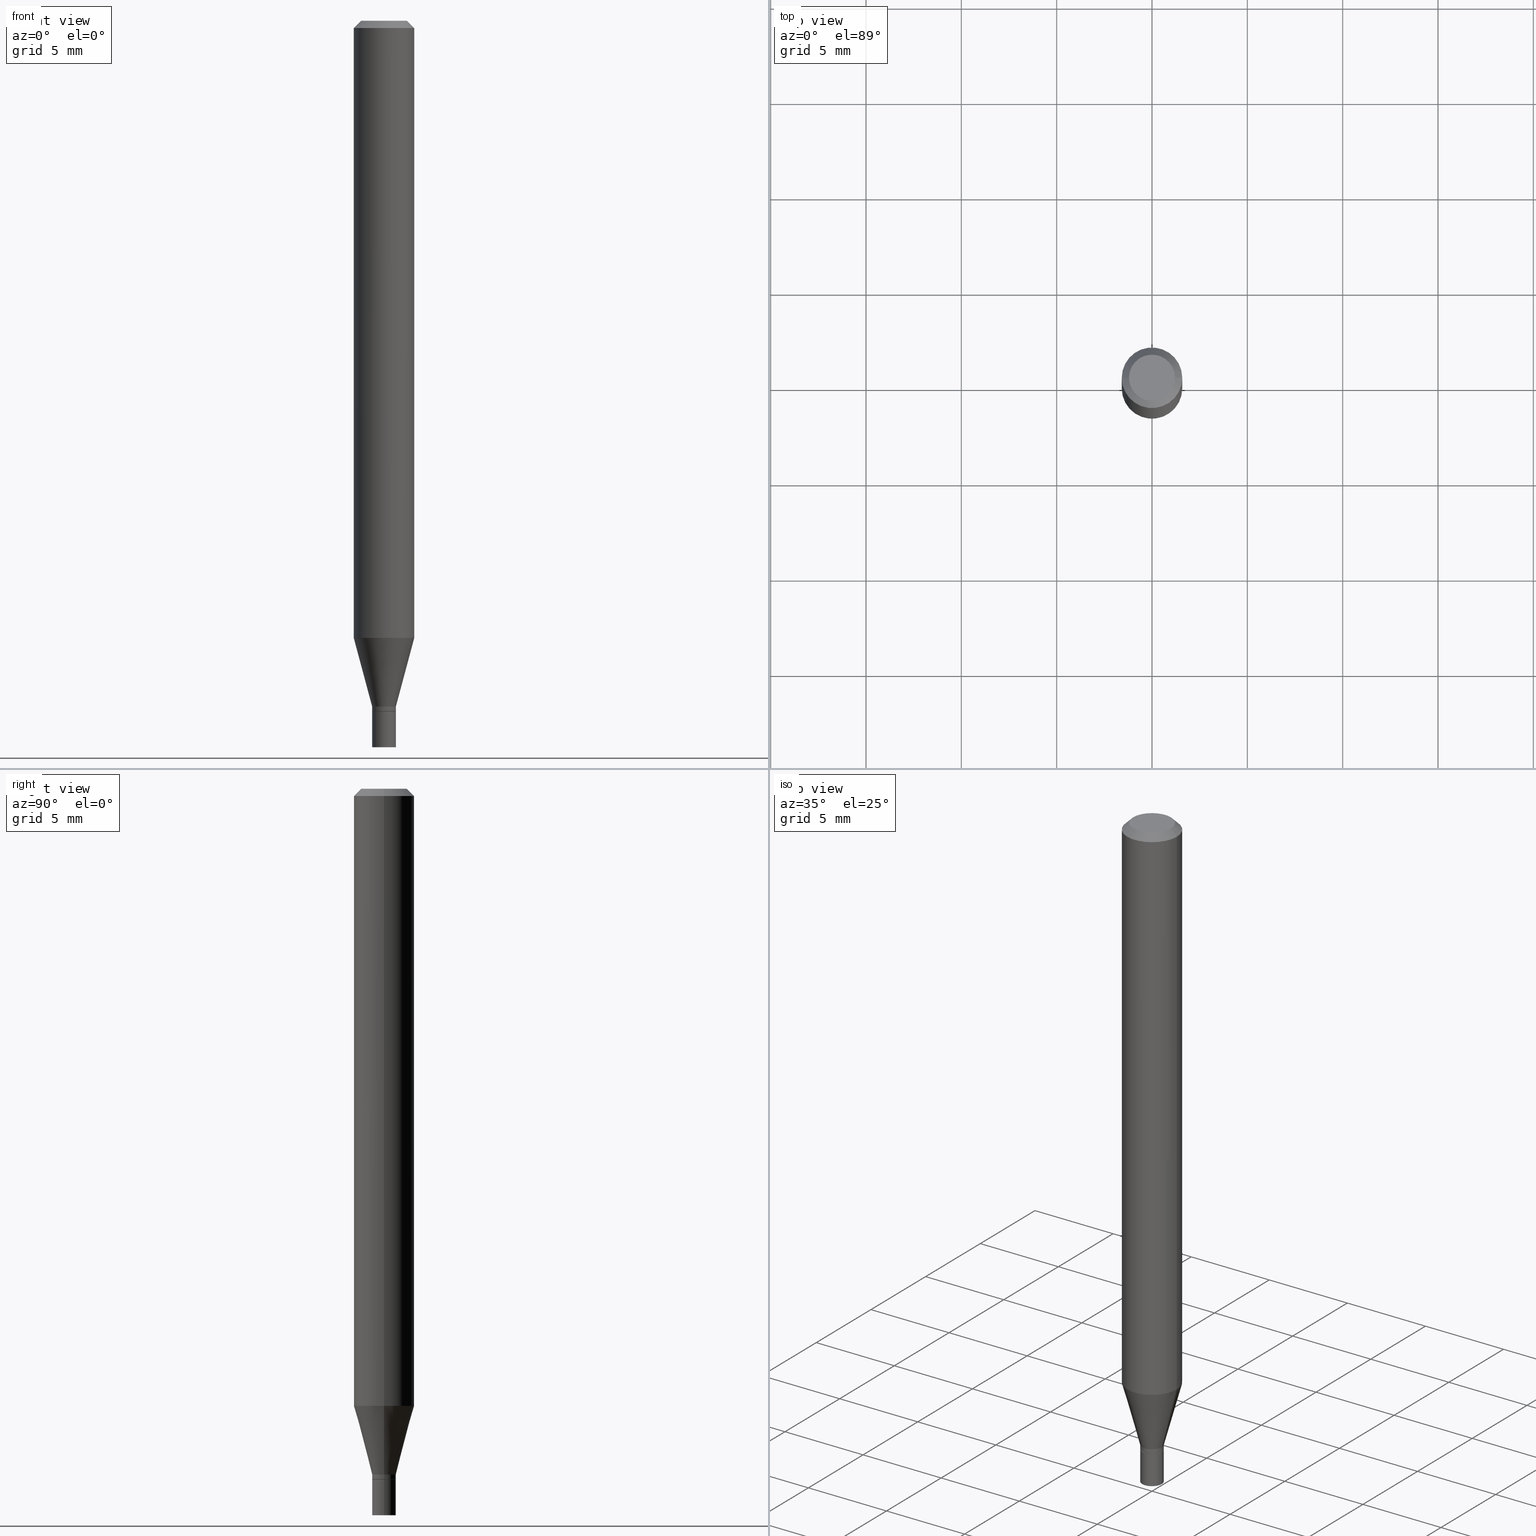
[diagram: canonical four-view strip — front | top / right | iso, engineering-drawing reading convention]
A machine part, canonical four-view strip (front | top / right | iso — engineering-drawing reading convention). The complete STEP part file that produces these views, byte-faithful:
ISO-10303-21;
HEADER;
FILE_DESCRIPTION (( 'STEP AP203' ),
    '1' );
FILE_NAME ('02410.STEP',
    '2024-03-18T20:27:13',
    ( '' ),
    ( '' ),
    'SwSTEP 2.0',
    'SolidWorks 2023',
    '' );
FILE_SCHEMA (( 'CONFIG_CONTROL_DESIGN' ));
ENDSEC;

DATA;
#1 = AXIS2_PLACEMENT_3D ( 'NONE', #351, #104, #232 ) ;
#2 = FACE_OUTER_BOUND ( 'NONE', #361, .T. ) ;
#3 = CONICAL_SURFACE ( 'NONE', #423, 0.06250000000000000000, 0.7853981633974428389 ) ;
#4 = VERTEX_POINT ( 'NONE', #458 ) ;
#5 = DIRECTION ( 'NONE',  ( -2.445468806185136597E-29, 3.491481338843145583E-15, 1.000000000000000000 ) ) ;
#6 = PRODUCT ( '02410', '02410', '', ( #340 ) ) ;
#7 = ORIENTED_EDGE ( 'NONE', *, *, #280, .F. ) ;
#8 = EDGE_LOOP ( 'NONE', ( #107, #354 ) ) ;
#9 = ADVANCED_FACE ( 'NONE', ( #95 ), #305, .F. ) ;
#10 = FACE_OUTER_BOUND ( 'NONE', #52, .T. ) ;
#11 = CARTESIAN_POINT ( 'NONE',  ( 3.487238517620005029E-29, -4.978852389190326182E-15, -1.425999999999999934 ) ) ;
#12 = CIRCLE ( 'NONE', #267, 0.02400000000000000050 ) ;
#13 = CIRCLE ( 'NONE', #133, 0.02450000000000000094 ) ;
#14 = EDGE_CURVE ( 'NONE', #363, #318, #189, .T. ) ;
#15 = ORIENTED_EDGE ( 'NONE', *, *, #156, .T. ) ;
#16 = DIRECTION ( 'NONE',  ( -2.445468806185136877E-29, 3.491481338843145188E-15, 1.000000000000000000 ) ) ;
#17 = EDGE_LOOP ( 'NONE', ( #115, #357, #207, #372 ) ) ;
#18 = LINE ( 'NONE', #51, #276 ) ;
#19 = DIRECTION ( 'NONE',  ( 1.000000000000000000, -6.982962677686251722E-15, 0.000000000000000000 ) ) ;
#20 = AXIS2_PLACEMENT_3D ( 'NONE', #100, #239, #391 ) ;
#21 = AXIS2_PLACEMENT_3D ( 'NONE', #395, #463, #35 ) ;
#22 = CC_DESIGN_PERSON_AND_ORGANIZATION_ASSIGNMENT ( #23, #383, ( #55 ) ) ;
#23 = PERSON_AND_ORGANIZATION ( #465, #118 ) ;
#24 = ADVANCED_FACE ( 'NONE', ( #450 ), #292, .T. ) ;
#25 = DATE_AND_TIME ( #342, #277 ) ;
#26 = DIRECTION ( 'NONE',  ( 1.000000000000000000, -6.982962677686265922E-15, 4.876176775795935793E-29 ) ) ;
#27 = CARTESIAN_POINT ( 'NONE',  ( 0.000000000000000000, 0.000000000000000000, 0.000000000000000000 ) ) ;
#28 = AXIS2_PLACEMENT_3D ( 'NONE', #11, #447, #187 ) ;
#29 = PERSON_AND_ORGANIZATION_ROLE ( 'classification_officer' ) ;
#30 = CARTESIAN_POINT ( 'NONE',  ( 0.02450000000000000094, -5.149934974793639843E-15, -1.425999999999999934 ) ) ;
#31 = CARTESIAN_POINT ( 'NONE',  ( 0.02400000000000000050, -5.146443493454796047E-15, -1.425999999999999934 ) ) ;
#32 = ORIENTED_EDGE ( 'NONE', *, *, #270, .F. ) ;
#33 = CIRCLE ( 'NONE', #20, 0.02449999999999992462 ) ;
#34 = AXIS2_PLACEMENT_3D ( 'NONE', #282, #176, #76 ) ;
#35 = DIRECTION ( 'NONE',  ( 1.000000000000000000, -6.982962677686262766E-15, 0.000000000000000000 ) ) ;
#36 = EDGE_CURVE ( 'NONE', #143, #4, #454, .T. ) ;
#37 = EDGE_LOOP ( 'NONE', ( #345, #40, #283, #109 ) ) ;
#38 = CARTESIAN_POINT ( 'NONE',  ( -0.02450000000000000094, 1.740829702612245522E-16, -1.205139097112451940E-30 ) ) ;
#39 = DIRECTION ( 'NONE',  ( -1.000000000000000000, 6.982962677686266711E-15, 0.000000000000000000 ) ) ;
#40 = ORIENTED_EDGE ( 'NONE', *, *, #434, .T. ) ;
#41 = AXIS2_PLACEMENT_3D ( 'NONE', #27, #135, #422 ) ;
#42 = LINE ( 'NONE', #180, #429 ) ;
#43 = ORIENTED_EDGE ( 'NONE', *, *, #205, .T. ) ;
#44 = DIRECTION ( 'NONE',  ( -2.445468806185136877E-29, 3.491481338843145188E-15, 1.000000000000000000 ) ) ;
#45 = ORIENTED_EDGE ( 'NONE', *, *, #330, .T. ) ;
#46 = DIRECTION ( 'NONE',  ( -1.000000000000000000, 6.982962677686265922E-15, -4.876176775795935793E-29 ) ) ;
#47 = CARTESIAN_POINT ( 'NONE',  ( -0.06250000000000000000, -1.806488358837625086E-15, -0.01499999999999999944 ) ) ;
#48 = ADVANCED_FACE ( 'NONE', ( #164 ), #414, .T. ) ;
#49 = ORIENTED_EDGE ( 'NONE', *, *, #279, .F. ) ;
#50 = DIRECTION ( 'NONE',  ( -0.7071067811865436870, 2.468850131082216434E-15, -0.7071067811865513475 ) ) ;
#51 = CARTESIAN_POINT ( 'NONE',  ( 0.06250000000000000000, -4.364351673553916694E-16, 3.047610484872459871E-30 ) ) ;
#52 = EDGE_LOOP ( 'NONE', ( #181, #456 ) ) ;
#53 = APPROVAL ( #61, 'UNSPECIFIED' ) ;
#54 = CIRCLE ( 'NONE', #390, 0.02400000000000000050 ) ;
#55 = PRODUCT_DEFINITION_FORMATION_WITH_SPECIFIED_SOURCE ( 'ANY', '', #6, .NOT_KNOWN. ) ;
#56 = APPROVAL_ROLE ( '' ) ;
#57 = DIRECTION ( 'NONE',  ( 2.438088387897960049E-29, -3.491481338843145188E-15, -1.000000000000000000 ) ) ;
#58 = ORIENTED_EDGE ( 'NONE', *, *, #341, .T. ) ;
#59 = APPROVAL_DATE_TIME ( #449, #53 ) ;
#60 = ORIENTED_EDGE ( 'NONE', *, *, #14, .T. ) ;
#61 = APPROVAL_STATUS ( 'not_yet_approved' ) ;
#62 = ORIENTED_EDGE ( 'NONE', *, *, #434, .F. ) ;
#63 = AXIS2_PLACEMENT_3D ( 'NONE', #148, #251, #112 ) ;
#64 =( NAMED_UNIT ( * ) SI_UNIT ( $, .STERADIAN. ) SOLID_ANGLE_UNIT ( ) );
#65 = VERTEX_POINT ( 'NONE', #269 ) ;
#66 = EDGE_LOOP ( 'NONE', ( #137, #62 ) ) ;
#67 = CC_DESIGN_PERSON_AND_ORGANIZATION_ASSIGNMENT ( #266, #29, ( #92 ) ) ;
#68 = APPROVAL_DATE_TIME ( #25, #262 ) ;
#69 = DIRECTION ( 'NONE',  ( 1.000000000000000000, -6.982962677686254089E-15, 0.000000000000000000 ) ) ;
#70 = ORIENTED_EDGE ( 'NONE', *, *, #291, .F. ) ;
#71 = CARTESIAN_POINT ( 'NONE',  ( 0.02449999999999992809, -5.115020161405207405E-15, -1.416000000000000147 ) ) ;
#72 = FACE_OUTER_BOUND ( 'NONE', #287, .T. ) ;
#73 = ORIENTED_EDGE ( 'NONE', *, *, #150, .F. ) ;
#74 = CARTESIAN_POINT ( 'NONE',  ( 0.000000000000000000, 0.000000000000000000, 0.000000000000000000 ) ) ;
#75 = ORIENTED_EDGE ( 'NONE', *, *, #254, .F. ) ;
#76 = DIRECTION ( 'NONE',  ( 1.000000000000000000, -6.982962677686266711E-15, 0.000000000000000000 ) ) ;
#77 = AXIS2_PLACEMENT_3D ( 'NONE', #378, #123, #227 ) ;
#78 = VERTEX_POINT ( 'NONE', #418 ) ;
#79 = ORIENTED_EDGE ( 'NONE', *, *, #229, .T. ) ;
#80 = EDGE_CURVE ( 'NONE', #462, #364, #331, .T. ) ;
#81 = FACE_OUTER_BOUND ( 'NONE', #8, .T. ) ;
#82 = FACE_OUTER_BOUND ( 'NONE', #226, .T. ) ;
#83 = ORIENTED_EDGE ( 'NONE', *, *, #224, .T. ) ;
#84 = DIRECTION ( 'NONE',  ( -2.445468806185136597E-29, 3.491481338843145583E-15, 1.000000000000000000 ) ) ;
#85 = CIRCLE ( 'NONE', #196, 0.04749999999999999362 ) ;
#86 = CARTESIAN_POINT ( 'NONE',  ( 3.487238517620005029E-29, -4.978852389190326182E-15, -1.425999999999999934 ) ) ;
#87 = LINE ( 'NONE', #368, #174 ) ;
#88 = APPROVAL_ROLE ( '' ) ;
#89 = DIRECTION ( 'NONE',  ( -2.445468806185136597E-29, 3.491481338843145583E-15, 1.000000000000000000 ) ) ;
#90 = AXIS2_PLACEMENT_3D ( 'NONE', #147, #106, #69 ) ;
#91 = AXIS2_PLACEMENT_3D ( 'NONE', #425, #288, #281 ) ;
#92 = SECURITY_CLASSIFICATION ( '', '', #161 ) ;
#93 = ADVANCED_FACE ( 'NONE', ( #202 ), #242, .F. ) ;
#94 = PERSON_AND_ORGANIZATION_ROLE ( 'design_owner' ) ;
#95 = FACE_OUTER_BOUND ( 'NONE', #66, .T. ) ;
#96 = APPROVAL ( #274, 'UNSPECIFIED' ) ;
#97 = COORDINATED_UNIVERSAL_TIME_OFFSET ( 5, 0, .BEHIND. ) ;
#98 = CARTESIAN_POINT ( 'NONE',  ( 3.668203209277705088E-31, -5.237222008264718399E-17, -0.01499999999999999944 ) ) ;
#99 = PERSON_AND_ORGANIZATION ( #465, #118 ) ;
#100 = CARTESIAN_POINT ( 'NONE',  ( 3.486015783216912228E-29, -4.977106648520904679E-15, -1.425500000000000211 ) ) ;
#101 = CONICAL_SURFACE ( 'NONE', #252, 0.06250000000000000000, 0.7853981633974428389 ) ;
#102 = LOCAL_TIME ( 16, 27, 13.00000000000000000, #136 ) ;
#103 = PERSON_AND_ORGANIZATION ( #465, #118 ) ;
#104 = DIRECTION ( 'NONE',  ( -2.445468806185136597E-29, 3.491481338843145583E-15, 1.000000000000000000 ) ) ;
#105 = ADVANCED_FACE ( 'NONE', ( #346 ), #275, .T. ) ;
#106 = DIRECTION ( 'NONE',  ( -2.445468806185136597E-29, 3.491481338843145583E-15, 1.000000000000000000 ) ) ;
#107 = ORIENTED_EDGE ( 'NONE', *, *, #165, .F. ) ;
#108 = DIRECTION ( 'NONE',  ( -2.445468806185136597E-29, 3.491481338843145583E-15, 1.000000000000000000 ) ) ;
#109 = ORIENTED_EDGE ( 'NONE', *, *, #426, .F. ) ;
#110 = APPROVAL_PERSON_ORGANIZATION ( #163, #96, #264 ) ;
#111 = DIRECTION ( 'NONE',  ( 2.445468806185136597E-29, -3.491481338843145583E-15, -1.000000000000000000 ) ) ;
#112 = DIRECTION ( 'NONE',  ( 1.000000000000000000, -6.982962677686254878E-15, 0.000000000000000000 ) ) ;
#113 = ORIENTED_EDGE ( 'NONE', *, *, #229, .F. ) ;
#114 = LINE ( 'NONE', #71, #140 ) ;
#115 = ORIENTED_EDGE ( 'NONE', *, *, #308, .F. ) ;
#116 = CLOSED_SHELL ( 'NONE', ( #48, #24, #397, #369, #285, #177, #249, #200, #93, #376, #415, #250 ) ) ;
#117 = CARTESIAN_POINT ( 'NONE',  ( 0.06250000000000000000, -4.888073874380388472E-16, -0.01499999999999999944 ) ) ;
#118 = ORGANIZATION ( 'UNSPECIFIED', 'UNSPECIFIED', '' ) ;
#119 = ORIENTED_EDGE ( 'NONE', *, *, #270, .T. ) ;
#120 = CC_DESIGN_PERSON_AND_ORGANIZATION_ASSIGNMENT ( #306, #201, ( #55 ) ) ;
#121 = VERTEX_POINT ( 'NONE', #313 ) ;
#122 = ORIENTED_EDGE ( 'NONE', *, *, #452, .T. ) ;
#123 = DIRECTION ( 'NONE',  ( -2.445468806185136597E-29, 3.491481338843145583E-15, 1.000000000000000000 ) ) ;
#124 = VERTEX_POINT ( 'NONE', #271 ) ;
#125 = CARTESIAN_POINT ( 'NONE',  ( 0.02449999999999992462, -5.148189234124217550E-15, -1.425500000000000211 ) ) ;
#126 = CARTESIAN_POINT ( 'NONE',  ( 0.02400000000000000050, -5.146443493454796047E-15, -1.425999999999999934 ) ) ;
#127 = DATE_TIME_ROLE ( 'classification_date' ) ;
#128 = DIRECTION ( 'NONE',  ( -2.445468806185136597E-29, 3.491481338843145583E-15, 1.000000000000000000 ) ) ;
#129 = EDGE_CURVE ( 'NONE', #124, #192, #216, .T. ) ;
#130 = APPLICATION_PROTOCOL_DEFINITION ( 'international standard', 'config_control_design', 1994, #212 ) ;
#131 = DIRECTION ( 'NONE',  ( 1.000000000000000000, -6.982962677686265922E-15, 4.876176775795936353E-29 ) ) ;
#132 = VECTOR ( 'NONE', #315, 39.37007874015748143 ) ;
#133 = AXIS2_PLACEMENT_3D ( 'NONE', #184, #327, #253 ) ;
#134 = CC_DESIGN_SECURITY_CLASSIFICATION ( #92, ( #55 ) ) ;
#135 = DIRECTION ( 'NONE',  ( -2.445468806185136597E-29, 3.491481338843145583E-15, 1.000000000000000000 ) ) ;
#136 = COORDINATED_UNIVERSAL_TIME_OFFSET ( 5, 0, .BEHIND. ) ;
#137 = ORIENTED_EDGE ( 'NONE', *, *, #452, .F. ) ;
#138 = DIRECTION ( 'NONE',  ( 1.000000000000000000, 0.000000000000000000, 0.000000000000000000 ) ) ;
#139 = DIRECTION ( 'NONE',  ( -0.7071067811865656694, 7.493145998870420424E-15, 0.7071067811865294761 ) ) ;
#140 = VECTOR ( 'NONE', #211, 39.37007874015747433 ) ;
#141 = DIRECTION ( 'NONE',  ( 1.000000000000000000, -6.982962677686267499E-15, 4.852736867747366768E-29 ) ) ;
#142 = CARTESIAN_POINT ( 'NONE',  ( 3.668203209277705088E-31, -5.237222008264718399E-17, -0.01499999999999999944 ) ) ;
#143 = VERTEX_POINT ( 'NONE', #30 ) ;
#144 = ORIENTED_EDGE ( 'NONE', *, *, #80, .T. ) ;
#145 = DIRECTION ( 'NONE',  ( 1.000000000000000000, -6.982962677686266711E-15, 4.876176775795935232E-29 ) ) ;
#146 = AXIS2_PLACEMENT_3D ( 'NONE', #289, #220, #46 ) ;
#147 = CARTESIAN_POINT ( 'NONE',  ( 3.462783829558154044E-29, -4.943937575801894533E-15, -1.416000000000000147 ) ) ;
#148 = CARTESIAN_POINT ( 'NONE',  ( 3.486015783216912228E-29, -4.977106648520904679E-15, -1.425500000000000211 ) ) ;
#149 = PLANE ( 'NONE',  #146 ) ;
#150 = EDGE_CURVE ( 'NONE', #322, #431, #33, .T. ) ;
#151 = VERTEX_POINT ( 'NONE', #31 ) ;
#152 = AXIS2_PLACEMENT_3D ( 'NONE', #410, #259, #158 ) ;
#153 = DIRECTION ( 'NONE',  ( -2.445468806185136597E-29, 3.491481338843145583E-15, 1.000000000000000000 ) ) ;
#154 = EDGE_LOOP ( 'NONE', ( #214, #300, #186, #60 ) ) ;
#155 = DIRECTION ( 'NONE',  ( -2.445468806185136877E-29, 3.491481338843145188E-15, 1.000000000000000000 ) ) ;
#156 = EDGE_CURVE ( 'NONE', #121, #322, #171, .T. ) ;
#157 = CYLINDRICAL_SURFACE ( 'NONE', #77, 0.06250000000000000000 ) ;
#158 = DIRECTION ( 'NONE',  ( 1.000000000000000000, -6.982962677686265922E-15, 4.876176775795935793E-29 ) ) ;
#159 = ORIENTED_EDGE ( 'NONE', *, *, #156, .F. ) ;
#160 = AXIS2_PLACEMENT_3D ( 'NONE', #428, #399, #210 ) ;
#161 = SECURITY_CLASSIFICATION_LEVEL ( 'unclassified' ) ;
#162 = EDGE_CURVE ( 'NONE', #364, #462, #338, .T. ) ;
#163 = PERSON_AND_ORGANIZATION ( #465, #118 ) ;
#164 = FACE_OUTER_BOUND ( 'NONE', #325, .T. ) ;
#165 = EDGE_CURVE ( 'NONE', #151, #121, #12, .T. ) ;
#166 = ORIENTED_EDGE ( 'NONE', *, *, #279, .T. ) ;
#167 = LOCAL_TIME ( 16, 27, 13.00000000000000000, #203 ) ;
#168 = DATE_AND_TIME ( #272, #167 ) ;
#169 = VERTEX_POINT ( 'NONE', #244 ) ;
#170 = CALENDAR_DATE ( 2024, 18, 3 ) ;
#171 = LINE ( 'NONE', #459, #245 ) ;
#172 = DIRECTION ( 'NONE',  ( 0.7071067811865436870, -7.319954787623243424E-15, -0.7071067811865513475 ) ) ;
#173 = AXIS2_PLACEMENT_3D ( 'NONE', #273, #343, #26 ) ;
#174 = VECTOR ( 'NONE', #16, 39.37007874015748143 ) ;
#175 = FACE_OUTER_BOUND ( 'NONE', #219, .T. ) ;
#176 = DIRECTION ( 'NONE',  ( -2.445468806185136597E-29, 3.491481338843145583E-15, 1.000000000000000000 ) ) ;
#177 = ADVANCED_FACE ( 'NONE', ( #406 ), #301, .T. ) ;
#178 = CARTESIAN_POINT ( 'NONE',  ( 0.06250000000000000000, -4.811533449433679005E-16, -0.01499999999999999944 ) ) ;
#179 = VECTOR ( 'NONE', #44, 39.37007874015748143 ) ;
#180 = CARTESIAN_POINT ( 'NONE',  ( 0.02449999999999992809, -1.710825856033130197E-16, 1.194663310070000892E-30 ) ) ;
#181 = ORIENTED_EDGE ( 'NONE', *, *, #36, .T. ) ;
#182 = ORIENTED_EDGE ( 'NONE', *, *, #308, .T. ) ;
#183 = EDGE_CURVE ( 'NONE', #290, #4, #218, .T. ) ;
#184 = CARTESIAN_POINT ( 'NONE',  ( 3.668203209277704895E-29, -5.237222008264718177E-15, -1.500000000000000222 ) ) ;
#185 = APPLICATION_CONTEXT ( 'configuration controlled 3d designs of mechanical parts and assemblies' ) ;
#186 = ORIENTED_EDGE ( 'NONE', *, *, #407, .T. ) ;
#187 = DIRECTION ( 'NONE',  ( 1.000000000000000000, -6.982962677686273810E-15, 0.000000000000000000 ) ) ;
#188 = ADVANCED_BREP_SHAPE_REPRESENTATION ( '02410', ( #377, #208, #400 ), #241 ) ;
#189 = CIRCLE ( 'NONE', #195, 0.06250000000000000000 ) ;
#190 =( LENGTH_UNIT ( ) NAMED_UNIT ( * ) SI_UNIT ( $, .METRE. ) );
#191 = CC_DESIGN_APPROVAL ( #262, ( #92 ) ) ;
#192 = VERTEX_POINT ( 'NONE', #321 ) ;
#193 = FACE_OUTER_BOUND ( 'NONE', #403, .T. ) ;
#194 = CARTESIAN_POINT ( 'NONE',  ( 3.487238517620005029E-29, -4.978852389190326182E-15, -1.425999999999999934 ) ) ;
#195 = AXIS2_PLACEMENT_3D ( 'NONE', #98, #311, #393 ) ;
#196 = AXIS2_PLACEMENT_3D ( 'NONE', #436, #84, #444 ) ;
#197 = PRODUCT_DEFINITION ( 'UNKNOWN', '', #55, #433 ) ;
#198 = COORDINATED_UNIVERSAL_TIME_OFFSET ( 5, 0, .BEHIND. ) ;
#199 = ORIENTED_EDGE ( 'NONE', *, *, #129, .T. ) ;
#200 = ADVANCED_FACE ( 'NONE', ( #359 ), #3, .T. ) ;
#201 = PERSON_AND_ORGANIZATION_ROLE ( 'creator' ) ;
#202 = FACE_OUTER_BOUND ( 'NONE', #237, .T. ) ;
#203 = COORDINATED_UNIVERSAL_TIME_OFFSET ( 5, 0, .BEHIND. ) ;
#204 = CARTESIAN_POINT ( 'NONE',  ( 3.115972503903860033E-29, -4.448782917292728720E-15, -1.274182069312382870 ) ) ;
#205 = EDGE_CURVE ( 'NONE', #462, #192, #114, .T. ) ;
#206 = DIRECTION ( 'NONE',  ( 1.000000000000000000, -6.982962677686251722E-15, 0.000000000000000000 ) ) ;
#207 = ORIENTED_EDGE ( 'NONE', *, *, #254, .T. ) ;
#208 = MANIFOLD_SOLID_BREP ( 'Body-Move/Copy2[2]', #116 ) ;
#209 = EDGE_CURVE ( 'NONE', #169, #318, #324, .T. ) ;
#210 = DIRECTION ( 'NONE',  ( 1.000000000000000000, -6.982962677686254089E-15, 0.000000000000000000 ) ) ;
#211 = DIRECTION ( 'NONE',  ( 0.2588190451025214611, 1.565188264969621573E-15, 0.9659258262890682012 ) ) ;
#212 = APPLICATION_CONTEXT ( 'configuration controlled 3d designs of mechanical parts and assemblies' ) ;
#213 = DIRECTION ( 'NONE',  ( -2.445468806185136877E-29, 3.491481338843145188E-15, 1.000000000000000000 ) ) ;
#214 = ORIENTED_EDGE ( 'NONE', *, *, #209, .F. ) ;
#215 = CARTESIAN_POINT ( 'NONE',  ( -0.06250000000000000000, 4.440892098500626162E-16, -3.074334431409316114E-30 ) ) ;
#216 = CIRCLE ( 'NONE', #230, 0.06250000000000000000 ) ;
#217 = AXIS2_PLACEMENT_3D ( 'NONE', #404, #461, #141 ) ;
#218 = LINE ( 'NONE', #38, #132 ) ;
#219 = EDGE_LOOP ( 'NONE', ( #144, #166, #7, #392 ) ) ;
#220 = DIRECTION ( 'NONE',  ( 2.438088387897960049E-29, -3.491481338843145188E-15, -1.000000000000000000 ) ) ;
#221 = EDGE_CURVE ( 'NONE', #318, #363, #222, .T. ) ;
#222 = CIRCLE ( 'NONE', #34, 0.06250000000000000000 ) ;
#223 = DIRECTION ( 'NONE',  ( 2.445468806185136597E-29, -3.491481338843145583E-15, -1.000000000000000000 ) ) ;
#224 = EDGE_CURVE ( 'NONE', #78, #169, #258, .T. ) ;
#225 = DIRECTION ( 'NONE',  ( -2.445468806185136597E-29, 3.491481338843145583E-15, 1.000000000000000000 ) ) ;
#226 = EDGE_LOOP ( 'NONE', ( #443, #464, #387, #448 ) ) ;
#227 = DIRECTION ( 'NONE',  ( 1.000000000000000000, -6.982962677686266711E-15, 4.876176775795935793E-29 ) ) ;
#228 = ADVANCED_FACE ( 'NONE', ( #72 ), #319, .T. ) ;
#229 = EDGE_CURVE ( 'NONE', #124, #363, #430, .T. ) ;
#230 = AXIS2_PLACEMENT_3D ( 'NONE', #204, #420, #349 ) ;
#231 = AXIS2_PLACEMENT_3D ( 'NONE', #74, #108, #145 ) ;
#232 = DIRECTION ( 'NONE',  ( 1.000000000000000000, -6.982962677686254089E-15, 0.000000000000000000 ) ) ;
#233 = VECTOR ( 'NONE', #172, 39.37007874015748143 ) ;
#234 = PERSON_AND_ORGANIZATION ( #465, #118 ) ;
#235 = DIRECTION ( 'NONE',  ( -1.000000000000000000, 6.982962677686265922E-15, -4.876176775795935793E-29 ) ) ;
#236 = APPROVAL_DATE_TIME ( #304, #96 ) ;
#237 = EDGE_LOOP ( 'NONE', ( #83, #298 ) ) ;
#238 =( CONVERSION_BASED_UNIT ( 'INCH', #344 ) LENGTH_UNIT ( ) NAMED_UNIT ( #396 ) );
#239 = DIRECTION ( 'NONE',  ( -2.445468806185136597E-29, 3.491481338843145583E-15, 1.000000000000000000 ) ) ;
#240 = AXIS2_PLACEMENT_3D ( 'NONE', #389, #57, #235 ) ;
#241 =( GEOMETRIC_REPRESENTATION_CONTEXT ( 3 ) GLOBAL_UNCERTAINTY_ASSIGNED_CONTEXT ( ( #445 ) ) GLOBAL_UNIT_ASSIGNED_CONTEXT ( ( #238, #312, #64 ) ) REPRESENTATION_CONTEXT ( 'NONE', 'WORKASPACE' ) );
#242 = PLANE ( 'NONE',  #240 ) ;
#243 = DIRECTION ( 'NONE',  ( -0.2588190451025214611, 5.211531920934551042E-15, 0.9659258262890682012 ) ) ;
#244 = CARTESIAN_POINT ( 'NONE',  ( 0.04749999999999999362, -4.035134999187575172E-16, 1.642462207907168699E-16 ) ) ;
#245 = VECTOR ( 'NONE', #139, 39.37007874015748143 ) ;
#246 = CYLINDRICAL_SURFACE ( 'NONE', #316, 0.06250000000000000000 ) ;
#247 = LINE ( 'NONE', #432, #323 ) ;
#248 = ORIENTED_EDGE ( 'NONE', *, *, #280, .T. ) ;
#249 = ADVANCED_FACE ( 'NONE', ( #2 ), #246, .T. ) ;
#250 = ADVANCED_FACE ( 'NONE', ( #278 ), #401, .T. ) ;
#251 = DIRECTION ( 'NONE',  ( -2.445468806185136597E-29, 3.491481338843145583E-15, 1.000000000000000000 ) ) ;
#252 = AXIS2_PLACEMENT_3D ( 'NONE', #411, #223, #299 ) ;
#253 = DIRECTION ( 'NONE',  ( 1.000000000000000000, -6.982962677686273810E-15, 0.000000000000000000 ) ) ;
#254 = EDGE_CURVE ( 'NONE', #431, #462, #42, .T. ) ;
#255 = FACE_OUTER_BOUND ( 'NONE', #256, .T. ) ;
#256 = EDGE_LOOP ( 'NONE', ( #248, #79, #320, #435 ) ) ;
#257 = DIRECTION ( 'NONE',  ( 1.000000000000000000, -6.982962677686254089E-15, 0.000000000000000000 ) ) ;
#258 = CIRCLE ( 'NONE', #217, 0.04749999999999999362 ) ;
#259 = DIRECTION ( 'NONE',  ( -2.438088387897960049E-29, 3.491481338843145188E-15, 1.000000000000000000 ) ) ;
#260 = APPROVAL_PERSON_ORGANIZATION ( #234, #53, #88 ) ;
#261 = DIRECTION ( 'NONE',  ( 0.7071067811865656694, -2.468850131082446387E-15, 0.7071067811865294761 ) ) ;
#262 = APPROVAL ( #413, 'UNSPECIFIED' ) ;
#263 = ORIENTED_EDGE ( 'NONE', *, *, #162, .T. ) ;
#264 = APPROVAL_ROLE ( '' ) ;
#265 = DIRECTION ( 'NONE',  ( -2.445468806185136597E-29, 3.491481338843145583E-15, 1.000000000000000000 ) ) ;
#266 = PERSON_AND_ORGANIZATION ( #465, #118 ) ;
#267 = AXIS2_PLACEMENT_3D ( 'NONE', #466, #366, #358 ) ;
#268 = AXIS2_PLACEMENT_3D ( 'NONE', #329, #153, #295 ) ;
#269 = CARTESIAN_POINT ( 'NONE',  ( 0.02450000000000000094, -5.408304593868032626E-15, -1.500000000000000222 ) ) ;
#270 = EDGE_CURVE ( 'NONE', #431, #322, #356, .T. ) ;
#271 = CARTESIAN_POINT ( 'NONE',  ( -0.06250000000000000000, -4.004693707442665315E-15, -1.274182069312382870 ) ) ;
#272 = CALENDAR_DATE ( 2024, 18, 3 ) ;
#273 = CARTESIAN_POINT ( 'NONE',  ( 3.576687321579069994E-29, -5.368277968210015545E-15, -1.500000000000000222 ) ) ;
#274 = APPROVAL_STATUS ( 'not_yet_approved' ) ;
#275 = CYLINDRICAL_SURFACE ( 'NONE', #41, 0.02450000000000000094 ) ;
#276 = VECTOR ( 'NONE', #155, 39.37007874015748143 ) ;
#277 = LOCAL_TIME ( 16, 27, 13.00000000000000000, #198 ) ;
#278 = FACE_OUTER_BOUND ( 'NONE', #17, .T. ) ;
#279 = EDGE_CURVE ( 'NONE', #364, #124, #247, .T. ) ;
#280 = EDGE_CURVE ( 'NONE', #192, #124, #284, .T. ) ;
#281 = DIRECTION ( 'NONE',  ( 1.000000000000000000, -6.982962677686265922E-15, 4.876176775795936353E-29 ) ) ;
#282 = CARTESIAN_POINT ( 'NONE',  ( 3.668203209277705088E-31, -5.237222008264718399E-17, -0.01499999999999999944 ) ) ;
#283 = ORIENTED_EDGE ( 'NONE', *, *, #291, .T. ) ;
#284 = CIRCLE ( 'NONE', #21, 0.06250000000000000000 ) ;
#285 = ADVANCED_FACE ( 'NONE', ( #175 ), #460, .T. ) ;
#286 = CARTESIAN_POINT ( 'NONE',  ( 0.000000000000000000, 0.000000000000000000, 0.000000000000000000 ) ) ;
#287 = EDGE_LOOP ( 'NONE', ( #122, #437, #453, #70 ) ) ;
#288 = DIRECTION ( 'NONE',  ( -2.445468806185136597E-29, 3.491481338843145583E-15, 1.000000000000000000 ) ) ;
#289 = CARTESIAN_POINT ( 'NONE',  ( 1.710825856033483952E-16, 0.02449999999999502229, -1.425999999999999934 ) ) ;
#290 = VERTEX_POINT ( 'NONE', #297 ) ;
#291 = EDGE_CURVE ( 'NONE', #65, #143, #336, .T. ) ;
#292 = CONICAL_SURFACE ( 'NONE', #380, 0.02400000000000000050, 0.7853981633974739252 ) ;
#293 = VECTOR ( 'NONE', #213, 39.37007874015748143 ) ;
#294 = APPROVAL_PERSON_ORGANIZATION ( #99, #262, #56 ) ;
#295 = DIRECTION ( 'NONE',  ( 1.000000000000000000, -6.982962677686273810E-15, 0.000000000000000000 ) ) ;
#296 = CC_DESIGN_DATE_AND_TIME_ASSIGNMENT ( #168, #388, ( #197 ) ) ;
#297 = CARTESIAN_POINT ( 'NONE',  ( -0.02450000000000000094, -4.933954228466297874E-15, -1.500000000000000222 ) ) ;
#298 = ORIENTED_EDGE ( 'NONE', *, *, #381, .T. ) ;
#299 = DIRECTION ( 'NONE',  ( -1.000000000000000000, 6.982962677686266711E-15, 0.000000000000000000 ) ) ;
#300 = ORIENTED_EDGE ( 'NONE', *, *, #224, .F. ) ;
#301 = CONICAL_SURFACE ( 'NONE', #160, 0.02449999999999992809, 0.2617993877991501295 ) ;
#302 = CARTESIAN_POINT ( 'NONE',  ( -0.06250000000000000000, 3.840629472727444916E-16, -0.01499999999999999944 ) ) ;
#303 = EDGE_LOOP ( 'NONE', ( #49, #263, #43, #328 ) ) ;
#304 = DATE_AND_TIME ( #170, #365 ) ;
#305 = PLANE ( 'NONE',  #173 ) ;
#306 = PERSON_AND_ORGANIZATION ( #465, #118 ) ;
#307 = CARTESIAN_POINT ( 'NONE',  ( 0.000000000000000000, 0.000000000000000000, 0.000000000000000000 ) ) ;
#308 = EDGE_CURVE ( 'NONE', #322, #364, #87, .T. ) ;
#309 = CARTESIAN_POINT ( 'NONE',  ( 3.487238517620005029E-29, -4.978852389190326182E-15, -1.425999999999999934 ) ) ;
#310 = COORDINATED_UNIVERSAL_TIME_OFFSET ( 5, 0, .BEHIND. ) ;
#311 = DIRECTION ( 'NONE',  ( -2.445468806185136597E-29, 3.491481338843145583E-15, 1.000000000000000000 ) ) ;
#312 =( NAMED_UNIT ( * ) PLANE_ANGLE_UNIT ( ) SI_UNIT ( $, .RADIAN. ) );
#313 = CARTESIAN_POINT ( 'NONE',  ( -0.02400000000000000050, -4.805672905433791574E-15, -1.425999999999999934 ) ) ;
#314 = PRODUCT_RELATED_PRODUCT_CATEGORY ( 'detail', '', ( #6 ) ) ;
#315 = DIRECTION ( 'NONE',  ( -2.445468806185136877E-29, 3.491481338843145188E-15, 1.000000000000000000 ) ) ;
#316 = AXIS2_PLACEMENT_3D ( 'NONE', #286, #5, #362 ) ;
#317 = CARTESIAN_POINT ( 'NONE',  ( 3.462783829558154044E-29, -4.943937575801894533E-15, -1.416000000000000147 ) ) ;
#318 = VERTEX_POINT ( 'NONE', #117 ) ;
#319 = CYLINDRICAL_SURFACE ( 'NONE', #231, 0.02450000000000000094 ) ;
#320 = ORIENTED_EDGE ( 'NONE', *, *, #221, .F. ) ;
#321 = CARTESIAN_POINT ( 'NONE',  ( 0.06250000000000000000, -4.885218084648119600E-15, -1.274182069312382870 ) ) ;
#322 = VERTEX_POINT ( 'NONE', #409 ) ;
#323 = VECTOR ( 'NONE', #243, 39.37007874015747433 ) ;
#324 = LINE ( 'NONE', #178, #233 ) ;
#325 = EDGE_LOOP ( 'NONE', ( #119, #182, #353, #75 ) ) ;
#326 = PRODUCT_DEFINITION_SHAPE ( 'NONE', 'NONE',  #197 ) ;
#327 = DIRECTION ( 'NONE',  ( -2.445468806185136597E-29, 3.491481338843145583E-15, 1.000000000000000000 ) ) ;
#328 = ORIENTED_EDGE ( 'NONE', *, *, #129, .F. ) ;
#329 = CARTESIAN_POINT ( 'NONE',  ( 3.668203209277704895E-29, -5.237222008264718177E-15, -1.500000000000000222 ) ) ;
#330 = EDGE_CURVE ( 'NONE', #151, #431, #442, .T. ) ;
#331 = CIRCLE ( 'NONE', #1, 0.02449999999999992809 ) ;
#332 = VECTOR ( 'NONE', #261, 39.37007874015748143 ) ;
#333 = ORIENTED_EDGE ( 'NONE', *, *, #165, .T. ) ;
#334 = PLANE ( 'NONE',  #152 ) ;
#335 = ORIENTED_EDGE ( 'NONE', *, *, #14, .F. ) ;
#336 = LINE ( 'NONE', #371, #179 ) ;
#337 = DIRECTION ( 'NONE',  ( -2.445468806185136597E-29, 3.491481338843145583E-15, 1.000000000000000000 ) ) ;
#338 = CIRCLE ( 'NONE', #90, 0.02449999999999992809 ) ;
#339 = AXIS2_PLACEMENT_3D ( 'NONE', #317, #427, #257 ) ;
#340 = MECHANICAL_CONTEXT ( 'NONE', #185, 'mechanical' ) ;
#341 = EDGE_CURVE ( 'NONE', #192, #318, #18, .T. ) ;
#342 = CALENDAR_DATE ( 2024, 18, 3 ) ;
#343 = DIRECTION ( 'NONE',  ( -2.438088387897960049E-29, 3.491481338843145188E-15, 1.000000000000000000 ) ) ;
#344 = LENGTH_MEASURE_WITH_UNIT ( LENGTH_MEASURE( 0.02539999999999999897 ), #190 );
#345 = ORIENTED_EDGE ( 'NONE', *, *, #183, .F. ) ;
#346 = FACE_OUTER_BOUND ( 'NONE', #37, .T. ) ;
#347 = CALENDAR_DATE ( 2024, 18, 3 ) ;
#348 = CIRCLE ( 'NONE', #28, 0.02450000000000000094 ) ;
#349 = DIRECTION ( 'NONE',  ( 1.000000000000000000, -6.982962677686262766E-15, 0.000000000000000000 ) ) ;
#350 = PERSON_AND_ORGANIZATION ( #465, #118 ) ;
#351 = CARTESIAN_POINT ( 'NONE',  ( 3.462783829558154044E-29, -4.943937575801894533E-15, -1.416000000000000147 ) ) ;
#352 = CC_DESIGN_PERSON_AND_ORGANIZATION_ASSIGNMENT ( #103, #379, ( #197 ) ) ;
#353 = ORIENTED_EDGE ( 'NONE', *, *, #80, .F. ) ;
#354 = ORIENTED_EDGE ( 'NONE', *, *, #367, .F. ) ;
#355 = DIRECTION ( 'NONE',  ( -2.445468806185136877E-29, 3.491481338843145188E-15, 1.000000000000000000 ) ) ;
#356 = CIRCLE ( 'NONE', #63, 0.02449999999999992462 ) ;
#357 = ORIENTED_EDGE ( 'NONE', *, *, #150, .T. ) ;
#358 = DIRECTION ( 'NONE',  ( 1.000000000000000000, -6.982962677686251722E-15, 0.000000000000000000 ) ) ;
#359 = FACE_OUTER_BOUND ( 'NONE', #154, .T. ) ;
#360 = CC_DESIGN_PERSON_AND_ORGANIZATION_ASSIGNMENT ( #350, #94, ( #6 ) ) ;
#361 = EDGE_LOOP ( 'NONE', ( #113, #199, #58, #335 ) ) ;
#362 = DIRECTION ( 'NONE',  ( 1.000000000000000000, -6.982962677686266711E-15, 4.876176775795935793E-29 ) ) ;
#363 = VERTEX_POINT ( 'NONE', #47 ) ;
#364 = VERTEX_POINT ( 'NONE', #412 ) ;
#365 = LOCAL_TIME ( 16, 27, 13.00000000000000000, #97 ) ;
#366 = DIRECTION ( 'NONE',  ( -2.445468806185136597E-29, 3.491481338843145583E-15, 1.000000000000000000 ) ) ;
#367 = EDGE_CURVE ( 'NONE', #121, #151, #54, .T. ) ;
#368 = CARTESIAN_POINT ( 'NONE',  ( -0.02449999999999992809, 1.740829702612240346E-16, -1.205139097112448262E-30 ) ) ;
#369 = ADVANCED_FACE ( 'NONE', ( #255 ), #157, .T. ) ;
#370 = EDGE_LOOP ( 'NONE', ( #333, #15, #32, #405 ) ) ;
#371 = CARTESIAN_POINT ( 'NONE',  ( 0.02450000000000000094, -1.710825856033135374E-16, 1.194663310070004220E-30 ) ) ;
#372 = ORIENTED_EDGE ( 'NONE', *, *, #162, .F. ) ;
#373 = CC_DESIGN_APPROVAL ( #96, ( #197 ) ) ;
#374 = LOCAL_TIME ( 16, 27, 13.00000000000000000, #310 ) ;
#375 = LINE ( 'NONE', #302, #455 ) ;
#376 = ADVANCED_FACE ( 'NONE', ( #81 ), #334, .F. ) ;
#377 = MANIFOLD_SOLID_BREP ( 'Body-Move/Copy2[1]', #446 ) ;
#378 = CARTESIAN_POINT ( 'NONE',  ( 0.000000000000000000, 0.000000000000000000, 0.000000000000000000 ) ) ;
#379 = PERSON_AND_ORGANIZATION_ROLE ( 'creator' ) ;
#380 = AXIS2_PLACEMENT_3D ( 'NONE', #385, #128, #206 ) ;
#381 = EDGE_CURVE ( 'NONE', #169, #78, #85, .T. ) ;
#382 = CONICAL_SURFACE ( 'NONE', #416, 0.02400000000000000050, 0.7853981633974739252 ) ;
#383 = PERSON_AND_ORGANIZATION_ROLE ( 'design_supplier' ) ;
#384 = CC_DESIGN_APPROVAL ( #53, ( #55 ) ) ;
#385 = CARTESIAN_POINT ( 'NONE',  ( 3.487238517620005029E-29, -4.978852389190326182E-15, -1.425999999999999934 ) ) ;
#386 = DIRECTION ( 'NONE',  ( 0.000000000000000000, 0.000000000000000000, 1.000000000000000000 ) ) ;
#387 = ORIENTED_EDGE ( 'NONE', *, *, #221, .T. ) ;
#388 = DATE_TIME_ROLE ( 'creation_date' ) ;
#389 = CARTESIAN_POINT ( 'NONE',  ( 3.316907271900976096E-16, 0.04749999999999999362, -8.372225319969225571E-17 ) ) ;
#390 = AXIS2_PLACEMENT_3D ( 'NONE', #194, #337, #19 ) ;
#391 = DIRECTION ( 'NONE',  ( 1.000000000000000000, -6.982962677686254878E-15, 0.000000000000000000 ) ) ;
#392 = ORIENTED_EDGE ( 'NONE', *, *, #205, .F. ) ;
#393 = DIRECTION ( 'NONE',  ( 1.000000000000000000, -6.982962677686266711E-15, 0.000000000000000000 ) ) ;
#394 = SHAPE_DEFINITION_REPRESENTATION ( #326, #188 ) ;
#395 = CARTESIAN_POINT ( 'NONE',  ( 3.115972503903860033E-29, -4.448782917292728720E-15, -1.274182069312382870 ) ) ;
#396 = DIMENSIONAL_EXPONENTS ( 1.000000000000000000, 0.000000000000000000, 0.000000000000000000, 0.000000000000000000, 0.000000000000000000, 0.000000000000000000, 0.000000000000000000 ) ;
#397 = ADVANCED_FACE ( 'NONE', ( #82 ), #101, .T. ) ;
#398 = AXIS2_PLACEMENT_3D ( 'NONE', #307, #89, #131 ) ;
#399 = DIRECTION ( 'NONE',  ( -2.445468806185136597E-29, 3.491481338843145583E-15, 1.000000000000000000 ) ) ;
#400 = AXIS2_PLACEMENT_3D ( 'NONE', #419, #386, #138 ) ;
#401 = CYLINDRICAL_SURFACE ( 'NONE', #91, 0.02449999999999992809 ) ;
#402 = ORIENTED_EDGE ( 'NONE', *, *, #367, .T. ) ;
#403 = EDGE_LOOP ( 'NONE', ( #159, #402, #45, #73 ) ) ;
#404 = CARTESIAN_POINT ( 'NONE',  ( -4.016590094774884317E-45, 5.734626148662899892E-31, 1.642462207907142815E-16 ) ) ;
#405 = ORIENTED_EDGE ( 'NONE', *, *, #330, .F. ) ;
#406 = FACE_OUTER_BOUND ( 'NONE', #303, .T. ) ;
#407 = EDGE_CURVE ( 'NONE', #78, #363, #375, .T. ) ;
#408 = DIRECTION ( 'NONE',  ( 1.000000000000000000, -6.982962677686251722E-15, 0.000000000000000000 ) ) ;
#409 = CARTESIAN_POINT ( 'NONE',  ( -0.02449999999999992462, -4.803023678259681162E-15, -1.425500000000000211 ) ) ;
#410 = CARTESIAN_POINT ( 'NONE',  ( 3.487238517620005029E-29, -4.978852389190326182E-15, -1.425999999999999934 ) ) ;
#411 = CARTESIAN_POINT ( 'NONE',  ( 3.668203209277705088E-31, -5.237222008264718399E-17, -0.01499999999999999944 ) ) ;
#412 = CARTESIAN_POINT ( 'NONE',  ( -0.02449999999999992809, -4.387274156491668166E-15, -1.416000000000000147 ) ) ;
#413 = APPROVAL_STATUS ( 'not_yet_approved' ) ;
#414 = CYLINDRICAL_SURFACE ( 'NONE', #398, 0.02449999999999992809 ) ;
#415 = ADVANCED_FACE ( 'NONE', ( #193 ), #382, .T. ) ;
#416 = AXIS2_PLACEMENT_3D ( 'NONE', #86, #225, #408 ) ;
#417 = APPLICATION_PROTOCOL_DEFINITION ( 'international standard', 'config_control_design', 1994, #185 ) ;
#418 = CARTESIAN_POINT ( 'NONE',  ( -0.04749999999999999362, 3.578768372314213957E-16, 1.642462207907118902E-16 ) ) ;
#419 = CARTESIAN_POINT ( 'NONE',  ( 0.000000000000000000, 0.000000000000000000, 0.000000000000000000 ) ) ;
#420 = DIRECTION ( 'NONE',  ( -2.445468806185136597E-29, 3.491481338843145583E-15, 1.000000000000000000 ) ) ;
#421 = DATE_AND_TIME ( #457, #374 ) ;
#422 = DIRECTION ( 'NONE',  ( 1.000000000000000000, -6.982962677686266711E-15, 4.876176775795935232E-29 ) ) ;
#423 = AXIS2_PLACEMENT_3D ( 'NONE', #142, #111, #39 ) ;
#424 = DIRECTION ( 'NONE',  ( 1.000000000000000000, -6.982962677686273810E-15, 0.000000000000000000 ) ) ;
#425 = CARTESIAN_POINT ( 'NONE',  ( 0.000000000000000000, 0.000000000000000000, 0.000000000000000000 ) ) ;
#426 = EDGE_CURVE ( 'NONE', #4, #143, #348, .T. ) ;
#427 = DIRECTION ( 'NONE',  ( -2.445468806185136597E-29, 3.491481338843145583E-15, 1.000000000000000000 ) ) ;
#428 = CARTESIAN_POINT ( 'NONE',  ( 3.462783829558154044E-29, -4.943937575801894533E-15, -1.416000000000000147 ) ) ;
#429 = VECTOR ( 'NONE', #355, 39.37007874015748143 ) ;
#430 = LINE ( 'NONE', #215, #293 ) ;
#431 = VERTEX_POINT ( 'NONE', #125 ) ;
#432 = CARTESIAN_POINT ( 'NONE',  ( -0.02449999999999992809, -4.769854605540670227E-15, -1.416000000000000147 ) ) ;
#433 = DESIGN_CONTEXT ( 'detailed design', #212, 'design' ) ;
#434 = EDGE_CURVE ( 'NONE', #290, #65, #13, .T. ) ;
#435 = ORIENTED_EDGE ( 'NONE', *, *, #341, .F. ) ;
#436 = CARTESIAN_POINT ( 'NONE',  ( -4.016590094774884317E-45, 5.734626148662899892E-31, 1.642462207907142815E-16 ) ) ;
#437 = ORIENTED_EDGE ( 'NONE', *, *, #183, .T. ) ;
#438 = AXIS2_PLACEMENT_3D ( 'NONE', #309, #265, #424 ) ;
#439 = CIRCLE ( 'NONE', #268, 0.02450000000000000094 ) ;
#440 = CARTESIAN_POINT ( 'NONE',  ( 0.02449999999999992809, -5.115020161405207405E-15, -1.416000000000000147 ) ) ;
#441 = ADVANCED_FACE ( 'NONE', ( #10 ), #149, .F. ) ;
#442 = LINE ( 'NONE', #126, #332 ) ;
#443 = ORIENTED_EDGE ( 'NONE', *, *, #381, .F. ) ;
#444 = DIRECTION ( 'NONE',  ( 1.000000000000000000, -6.982962677686267499E-15, 4.852736867747366768E-29 ) ) ;
#445 = UNCERTAINTY_MEASURE_WITH_UNIT (LENGTH_MEASURE( 1.000000000000000082E-05 ), #238, 'distance_accuracy_value', 'NONE');
#446 = CLOSED_SHELL ( 'NONE', ( #228, #9, #105, #441 ) ) ;
#447 = DIRECTION ( 'NONE',  ( -2.445468806185136597E-29, 3.491481338843145583E-15, 1.000000000000000000 ) ) ;
#448 = ORIENTED_EDGE ( 'NONE', *, *, #407, .F. ) ;
#449 = DATE_AND_TIME ( #347, #102 ) ;
#450 = FACE_OUTER_BOUND ( 'NONE', #370, .T. ) ;
#451 = CC_DESIGN_DATE_AND_TIME_ASSIGNMENT ( #421, #127, ( #92 ) ) ;
#452 = EDGE_CURVE ( 'NONE', #65, #290, #439, .T. ) ;
#453 = ORIENTED_EDGE ( 'NONE', *, *, #36, .F. ) ;
#454 = CIRCLE ( 'NONE', #438, 0.02450000000000000094 ) ;
#455 = VECTOR ( 'NONE', #50, 39.37007874015748143 ) ;
#456 = ORIENTED_EDGE ( 'NONE', *, *, #426, .T. ) ;
#457 = CALENDAR_DATE ( 2024, 18, 3 ) ;
#458 = CARTESIAN_POINT ( 'NONE',  ( -0.02450000000000000094, -4.933954228466297874E-15, -1.425999999999999934 ) ) ;
#459 = CARTESIAN_POINT ( 'NONE',  ( -0.02400000000000000050, -4.808322132607902775E-15, -1.425999999999999934 ) ) ;
#460 = CONICAL_SURFACE ( 'NONE', #339, 0.02449999999999992809, 0.2617993877991501295 ) ;
#461 = DIRECTION ( 'NONE',  ( -2.445468806185136597E-29, 3.491481338843145583E-15, 1.000000000000000000 ) ) ;
#462 = VERTEX_POINT ( 'NONE', #440 ) ;
#463 = DIRECTION ( 'NONE',  ( -2.445468806185136597E-29, 3.491481338843145583E-15, 1.000000000000000000 ) ) ;
#464 = ORIENTED_EDGE ( 'NONE', *, *, #209, .T. ) ;
#465 = PERSON ( 'UNSPECIFIED', 'UNSPECIFIED', 'UNSPECIFIED', ('UNSPECIFIED'), ('UNSPECIFIED'), ('UNSPECIFIED') ) ;
#466 = CARTESIAN_POINT ( 'NONE',  ( 3.487238517620005029E-29, -4.978852389190326182E-15, -1.425999999999999934 ) ) ;
ENDSEC;
END-ISO-10303-21;
